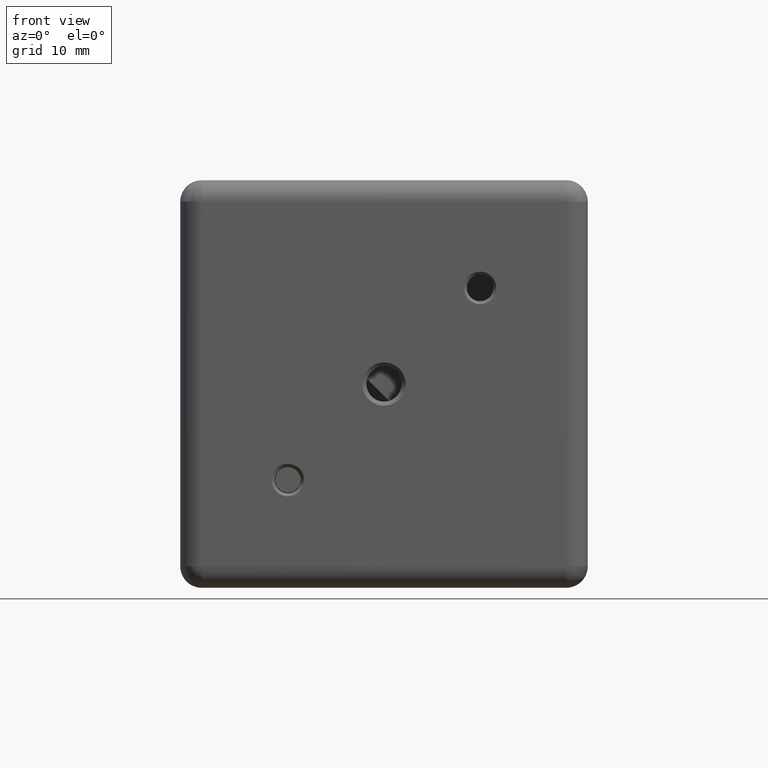
[diagram: clean part render]
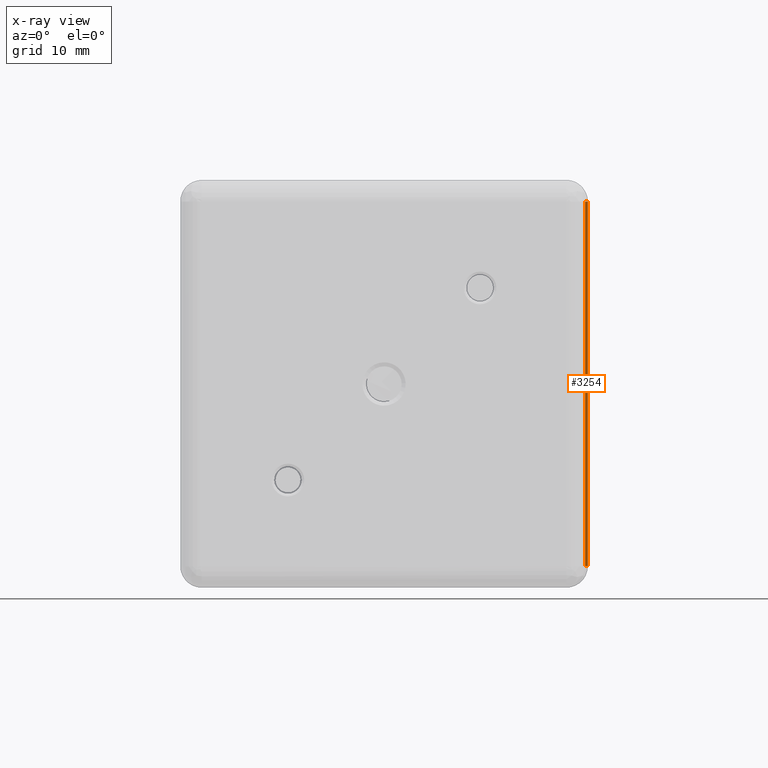
[diagram: x-ray — body ghosted, one internal face saturated and labeled with its STEP entity id]
A machine part, front view, then the same camera in x-ray: the body is ghosted and one INTERNAL B-rep face — a face not visible from any outside direction — is saturated and labeled: STEP entity #3254.
In plain terms, the highlighted face is a freeform B-spline surface patch.
Its self-contained STEP definition (entity closure, byte-faithful):
#1038 = CARTESIAN_POINT ( 'NONE',  ( 19.05000000000000071, 1.750000000000000000, -17.05000000000000071 ) ) ;
#1360 = CARTESIAN_POINT ( 'NONE',  ( 18.80000000000000071, 2.000000000000000000, 17.05000000000000071 ) ) ;
#2476 = FACE_OUTER_BOUND ( 'NONE', #9446, .T. ) ;
#3254 = ADVANCED_FACE ( 'NONE', ( #2476 ), #13309, .T. ) ;
#3327 = VERTEX_POINT ( 'NONE', #5476 ) ;
#3654 = CARTESIAN_POINT ( 'NONE',  ( 19.05000000000000071, 1.750000000000000000, -17.05000000000000071 ) ) ;
#4912 = ORIENTED_EDGE ( 'NONE', *, *, #6104, .T. ) ;
#4928 = VERTEX_POINT ( 'NONE', #11831 ) ;
#5401 = EDGE_CURVE ( 'NONE', #10571, #3327, #13545, .T. ) ;
#5476 = CARTESIAN_POINT ( 'NONE',  ( 19.05000000000000071, 1.750000000000000000, 17.05000000000000071 ) ) ;
#6099 = CARTESIAN_POINT ( 'NONE',  ( 19.05000000000000071, 1.750000000000000000, 17.05000000000000071 ) ) ;
#6104 = EDGE_CURVE ( 'NONE', #3327, #8510, #9322, .T. ) ;
#6201 = CARTESIAN_POINT ( 'NONE',  ( 18.80000000000000071, 2.000000000000000000, -17.05000000000000071 ) ) ;
#7353 = CARTESIAN_POINT ( 'NONE',  ( 18.80000000000000071, 2.000000000000000000, -17.05000000000000071 ) ) ;
#7509 = CARTESIAN_POINT ( 'NONE',  ( 19.05000000000000071, 1.750000000000000000, -17.05000000000000071 ) ) ;
#8125 = ORIENTED_EDGE ( 'NONE', *, *, #8268, .F. ) ;
#8268 = EDGE_CURVE ( 'NONE', #4928, #8510, #14070, .T. ) ;
#8510 = VERTEX_POINT ( 'NONE', #1038 ) ;
#8654 = CARTESIAN_POINT ( 'NONE',  ( 18.80000000000000071, 2.000000000000000000, 17.05000000000000071 ) ) ;
#8909 = CARTESIAN_POINT ( 'NONE',  ( 18.80000000000000071, 2.000000000000000000, -17.05000000000000071 ) ) ;
#8927 = CARTESIAN_POINT ( 'NONE',  ( 19.05000000000000071, 1.750000000000000000, 17.05000000000000071 ) ) ;
#9322 = B_SPLINE_CURVE_WITH_KNOTS ( 'NONE', 1,
 ( #8927, #11249 ),
 .UNSPECIFIED., .F., .F.,
 ( 2, 2 ),
 ( 0.000000000000000000, 1.000000000000000000 ),
 .UNSPECIFIED. ) ;
#9446 = EDGE_LOOP ( 'NONE', ( #14299, #13191, #4912, #8125 ) ) ;
#10571 = VERTEX_POINT ( 'NONE', #11350 ) ;
#11249 = CARTESIAN_POINT ( 'NONE',  ( 19.05000000000000071, 1.750000000000000000, -17.05000000000000071 ) ) ;
#11350 = CARTESIAN_POINT ( 'NONE',  ( 18.80000000000000071, 2.000000000000000000, 17.05000000000000071 ) ) ;
#11831 = CARTESIAN_POINT ( 'NONE',  ( 18.80000000000000071, 2.000000000000000000, -17.05000000000000071 ) ) ;
#12187 = CARTESIAN_POINT ( 'NONE',  ( 18.80000000000000071, 2.000000000000000000, 17.05000000000000071 ) ) ;
#12535 = EDGE_CURVE ( 'NONE', #10571, #4928, #14766, .T. ) ;
#13191 = ORIENTED_EDGE ( 'NONE', *, *, #5401, .T. ) ;
#13309 = B_SPLINE_SURFACE_WITH_KNOTS ( 'NONE', 1, 1, ( 
 ( #14727, #12187 ),
 ( #3654, #6201 ) ),
 .UNSPECIFIED., .F., .F., .F.,
 ( 2, 2 ),
 ( 2, 2 ),
 ( 0.000000000000000000, 1.000000000000000000 ),
 ( 0.000000000000000000, 1.000000000000000000 ),
 .UNSPECIFIED. ) ;
#13545 = B_SPLINE_CURVE_WITH_KNOTS ( 'NONE', 1,
 ( #8654, #6099 ),
 .UNSPECIFIED., .F., .F.,
 ( 2, 2 ),
 ( -1.000000000000000000, 0.000000000000000000 ),
 .UNSPECIFIED. ) ;
#14070 = B_SPLINE_CURVE_WITH_KNOTS ( 'NONE', 1,
 ( #7353, #7509 ),
 .UNSPECIFIED., .F., .F.,
 ( 2, 2 ),
 ( 0.000000000000000000, 1.000000000000000000 ),
 .UNSPECIFIED. ) ;
#14299 = ORIENTED_EDGE ( 'NONE', *, *, #12535, .F. ) ;
#14727 = CARTESIAN_POINT ( 'NONE',  ( 19.05000000000000071, 1.750000000000000000, 17.05000000000000071 ) ) ;
#14766 = B_SPLINE_CURVE_WITH_KNOTS ( 'NONE', 1,
 ( #1360, #8909 ),
 .UNSPECIFIED., .F., .F.,
 ( 2, 2 ),
 ( 0.000000000000000000, 1.000000000000000000 ),
 .UNSPECIFIED. ) ;